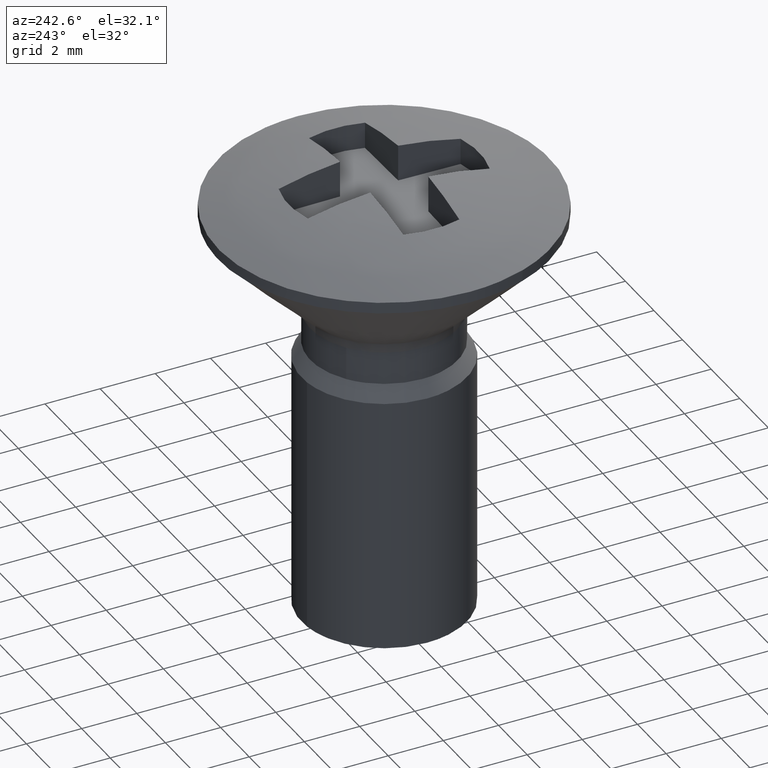
[diagram: clean part render]
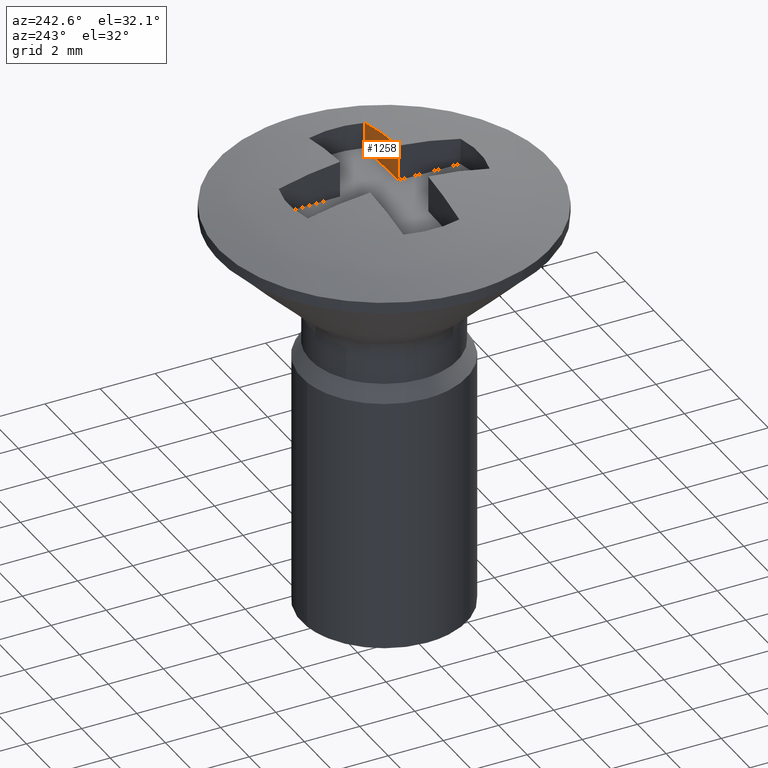
[diagram: same view with one face highlighted and labeled with its STEP entity id]
A machine part, auxiliary view. The second image highlights one B-rep face of the part: STEP entity #1258.
In plain terms, the highlighted face is a freeform B-spline surface patch.
Its self-contained STEP definition (entity closure, byte-faithful):
#1117=CARTESIAN_POINT('',(1.054115963433830,-1.054862043298612,0.0));
#1118=VERTEX_POINT('',#1117);
#1124=CARTESIAN_POINT('',(3.297313373403855,-1.014999762350760,0.0));
#1125=VERTEX_POINT('',#1124);
#1126=CARTESIAN_POINT('',(1.054115963433830,-1.054862043298612,0.0));
#1127=CARTESIAN_POINT('',(3.297313373403855,-1.014999762350760,0.0));
#1128=QUASI_UNIFORM_CURVE('',1,(#1126,#1127),.UNSPECIFIED.,.F.,.U.);
#1129=EDGE_CURVE('',#1118,#1125,#1128,.T.);
#1204=CARTESIAN_POINT('',(3.297313373403855,-1.014999762350760,0.953676499124700));
#1205=VERTEX_POINT('',#1204);
#1221=CARTESIAN_POINT('',(3.297313373403855,-1.014999762350760,0.953676499124700));
#1222=CARTESIAN_POINT('',(3.297313373403855,-1.014999762350760,0.0));
#1223=QUASI_UNIFORM_CURVE('',1,(#1221,#1222),.UNSPECIFIED.,.F.,.U.);
#1224=EDGE_CURVE('',#1205,#1125,#1223,.T.);
#1229=CARTESIAN_POINT('',(3.409361155899958,-1.013008640140298,-0.065820647915558));
#1230=CARTESIAN_POINT('',(0.942068361439456,-1.056853162301506,-0.065820647915558));
#1231=CARTESIAN_POINT('',(3.409361155899958,-1.013008640140298,1.383551423391510));
#1232=CARTESIAN_POINT('',(0.942068361439456,-1.056853162301506,1.383551423391510));
#1233=B_SPLINE_SURFACE_WITH_KNOTS('',1,1,((#1229,#1231),(#1230,#1232)),.UNSPECIFIED.,.F.,.F.,.U.,(2,2),(2,2),(0.0,2.467682328769297),(0.041708337925747,0.958291624821350),.UNSPECIFIED.);
#1234=CARTESIAN_POINT('',(1.054115963433830,-1.054862043298612,1.317730834383110));
#1235=VERTEX_POINT('',#1234);
#1236=CARTESIAN_POINT('',(1.054115963433830,-1.054862043298612,1.317730834383110));
#1237=CARTESIAN_POINT('',(2.191073462590730,-1.034657972512990,1.230369994259513));
#1238=CARTESIAN_POINT('',(3.297313373403855,-1.014999762350760,0.953676499124700));
#1246=(BOUNDED_CURVE()B_SPLINE_CURVE(2,(#1236,#1237,#1238),.UNSPECIFIED.,.F.,.U.)CURVE()GEOMETRIC_REPRESENTATION_ITEM()QUASI_UNIFORM_CURVE()RATIONAL_B_SPLINE_CURVE((1.0,0.996458095722812,1.0))REPRESENTATION_ITEM(''));
#1247=EDGE_CURVE('',#1235,#1205,#1246,.T.);
#1248=ORIENTED_EDGE('',*,*,#1247,.T.);
#1249=ORIENTED_EDGE('',*,*,#1224,.T.);
#1250=ORIENTED_EDGE('',*,*,#1129,.F.);
#1251=CARTESIAN_POINT('',(1.054115963433830,-1.054862043298612,1.317730834383110));
#1252=CARTESIAN_POINT('',(1.054115963433830,-1.054862043298612,0.0));
#1253=QUASI_UNIFORM_CURVE('',1,(#1251,#1252),.UNSPECIFIED.,.F.,.U.);
#1254=EDGE_CURVE('',#1235,#1118,#1253,.T.);
#1255=ORIENTED_EDGE('',*,*,#1254,.F.);
#1256=EDGE_LOOP('',(#1248,#1249,#1250,#1255));
#1257=FACE_OUTER_BOUND('',#1256,.T.);
#1258=ADVANCED_FACE('',(#1257),#1233,.T.);